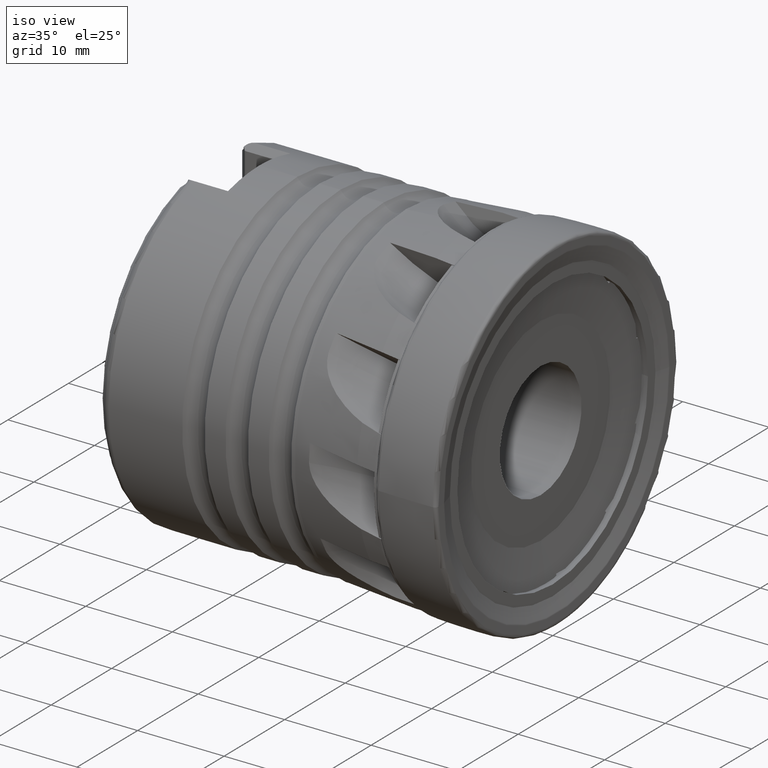
[diagram: clean part render]
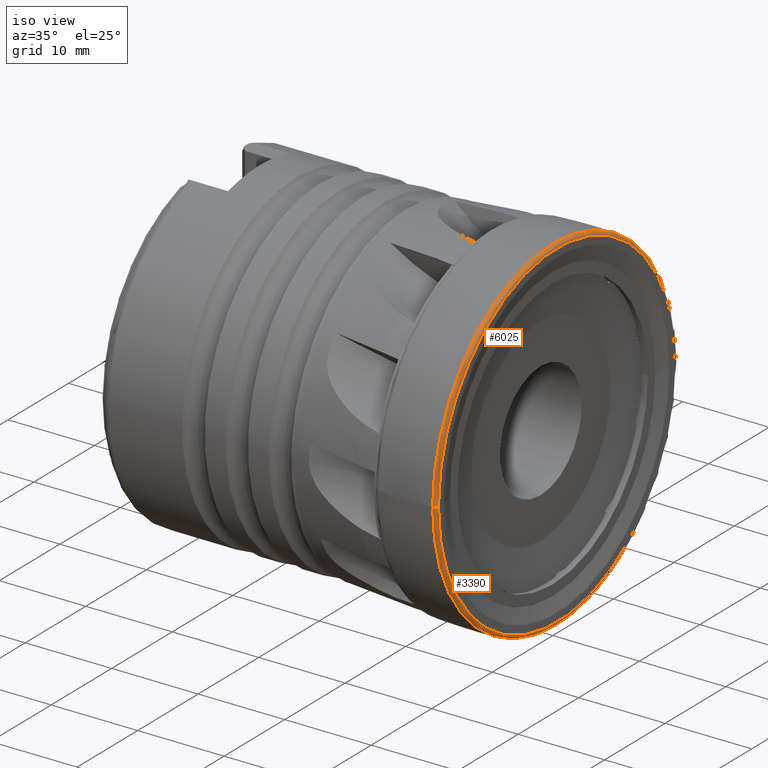
[diagram: same view with one multi-face feature highlighted, each face labeled with its STEP entity id]
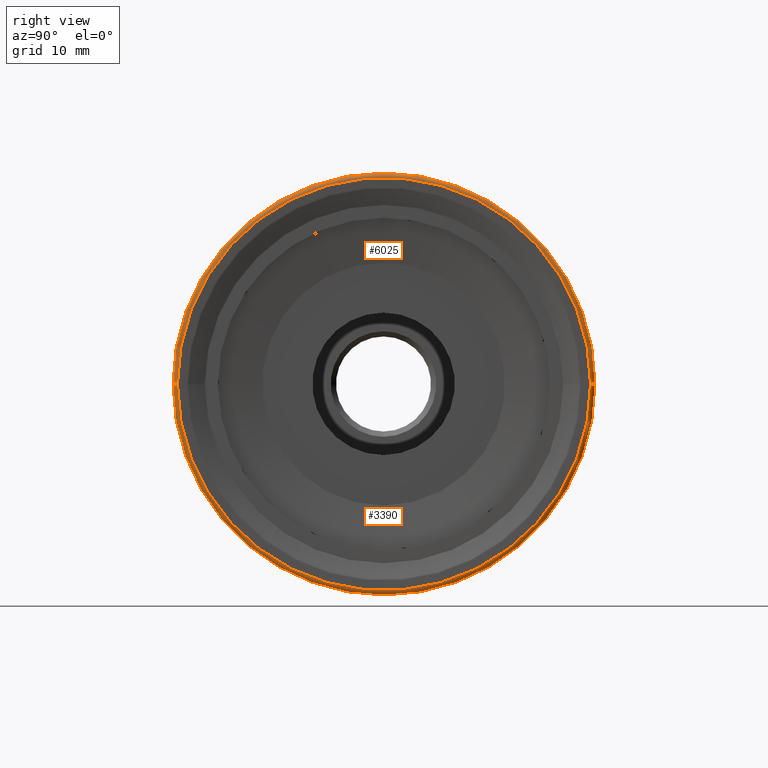
[diagram: same view with one multi-face feature highlighted, each face labeled with its STEP entity id]
A machine part, iso view. The highlighted faces form ONE feature: a constant-radius fillet chain: 2 tangent blend faces with common blend radius 0.3973 mm. The faces share edges in the B-rep.
A second angle (right view) of the same feature is appended — it is thin or edge-on in the first view.
Their STEP definitions:
[1] entity #6025 (Torus):
#91 = CARTESIAN_POINT ( 'NONE',  ( 0.06184514802468052400, 20.02561404155564500, 0.0000000000000000000 ) ) ;
#100 = CARTESIAN_POINT ( 'NONE',  ( 0.4498094004054028500, -19.51942813533848300, 2.421435466204023600E-015 ) ) ;
#645 = VERTEX_POINT ( 'NONE', #91 ) ;
#677 = VERTEX_POINT ( 'NONE', #100 ) ;
#1437 = ORIENTED_EDGE ( 'NONE', *, *, #6211, .F. ) ;
#1597 = DIRECTION ( 'NONE',  ( 1.000000000000000000, 1.224527162102617500E-016, -0.0000000000000000000 ) ) ;
#1608 = FACE_OUTER_BOUND ( 'NONE', #5571, .T. ) ;
#1609 = CARTESIAN_POINT ( 'NONE',  ( 0.05271361019861038600, 0.04834982009453009400, 0.0000000000000000000 ) ) ;
#1611 = DIRECTION ( 'NONE',  ( -1.224527162102617500E-016, 1.000000000000000000, 0.0000000000000000000 ) ) ;
#3816 = ORIENTED_EDGE ( 'NONE', *, *, #6215, .T. ) ;
#3827 = ORIENTED_EDGE ( 'NONE', *, *, #6216, .T. ) ;
#3886 = ORIENTED_EDGE ( 'NONE', *, *, #6209, .F. ) ;
#4906 = CARTESIAN_POINT ( 'NONE',  ( 0.06184514802468556900, -19.92891440136657600, 2.446509268453329800E-015 ) ) ;
#4968 = TOROIDAL_SURFACE ( 'NONE', #4970, 19.58008278868970100, 0.3972863898013892500 ) ;
#4970 = AXIS2_PLACEMENT_3D ( 'NONE', #1609, #1597, #1611 ) ;
#5166 = CIRCLE ( 'NONE', #5168, 19.56777795543301200 ) ;
#5167 = CIRCLE ( 'NONE', #5172, 0.3972863898013892500 ) ;
#5168 = AXIS2_PLACEMENT_3D ( 'NONE', #10123, #10124, #10125 ) ;
#5169 = CIRCLE ( 'NONE', #5180, 19.97726422146111600 ) ;
#5172 = AXIS2_PLACEMENT_3D ( 'NONE', #10132, #10133, #10134 ) ;
#5176 = CIRCLE ( 'NONE', #5178, 0.3972863898013892500 ) ;
#5178 = AXIS2_PLACEMENT_3D ( 'NONE', #10140, #10141, #10142 ) ;
#5180 = AXIS2_PLACEMENT_3D ( 'NONE', #10144, #10145, #10146 ) ;
#5293 = VERTEX_POINT ( 'NONE', #8301 ) ;
#5325 = VERTEX_POINT ( 'NONE', #4906 ) ;
#5571 = EDGE_LOOP ( 'NONE', ( #3827, #3816, #3886, #1437 ) ) ;
#6025 = ADVANCED_FACE ( 'NONE', ( #1608 ), #4968, .T. ) ;
#6209 = EDGE_CURVE ( 'NONE', #5293, #677, #5166, .T. ) ;
#6211 = EDGE_CURVE ( 'NONE', #645, #5293, #5167, .T. ) ;
#6215 = EDGE_CURVE ( 'NONE', #5325, #677, #5176, .T. ) ;
#6216 = EDGE_CURVE ( 'NONE', #645, #5325, #5169, .T. ) ;
#8301 = CARTESIAN_POINT ( 'NONE',  ( 0.4498094004053980700, 19.61612777552754100, 0.0000000000000000000 ) ) ;
#10123 = CARTESIAN_POINT ( 'NONE',  ( 0.4498094004054004600, 0.04834982009453017700, 0.0000000000000000000 ) ) ;
#10124 = DIRECTION ( 'NONE',  ( 1.000000000000000000, 1.224527162102617500E-016, -0.0000000000000000000 ) ) ;
#10125 = DIRECTION ( 'NONE',  ( -1.218965579485147500E-016, 1.000000000000000000, 0.0000000000000000000 ) ) ;
#10132 = CARTESIAN_POINT ( 'NONE',  ( 0.05271361019860798500, 19.62843260878423400, 0.0000000000000000000 ) ) ;
#10133 = DIRECTION ( 'NONE',  ( -0.0000000000000000000, 0.0000000000000000000, -1.000000000000000000 ) ) ;
#10134 = DIRECTION ( 'NONE',  ( -1.000000000000000000, 0.0000000000000000000, 0.0000000000000000000 ) ) ;
#10140 = CARTESIAN_POINT ( 'NONE',  ( 0.05271361019861278700, -19.53173296859517200, 2.397868571420902900E-015 ) ) ;
#10141 = DIRECTION ( 'NONE',  ( -1.499613269537962800E-032, 1.224646799147353200E-016, 1.000000000000000000 ) ) ;
#10142 = DIRECTION ( 'NONE',  ( 0.0000000000000000000, -1.000000000000000000, 1.224646799147348800E-016 ) ) ;
#10144 = CARTESIAN_POINT ( 'NONE',  ( 0.06184514802468326500, 0.04834982009453012800, 0.0000000000000000000 ) ) ;
#10145 = DIRECTION ( 'NONE',  ( 1.000000000000000000, 1.224527162102617500E-016, -0.0000000000000000000 ) ) ;
#10146 = DIRECTION ( 'NONE',  ( -1.227899570259096900E-016, 1.000000000000000000, 0.0000000000000000000 ) ) ;
[2] entity #3390 (Torus):
#91 = CARTESIAN_POINT ( 'NONE',  ( 0.06184514802468052400, 20.02561404155564500, 0.0000000000000000000 ) ) ;
#100 = CARTESIAN_POINT ( 'NONE',  ( 0.4498094004054028500, -19.51942813533848300, 2.421435466204023600E-015 ) ) ;
#443 = EDGE_LOOP ( 'NONE', ( #3343, #3344, #3345, #3346 ) ) ;
#645 = VERTEX_POINT ( 'NONE', #91 ) ;
#677 = VERTEX_POINT ( 'NONE', #100 ) ;
#1460 = TOROIDAL_SURFACE ( 'NONE', #1516, 19.58008278868970100, 0.3972863898013892500 ) ;
#1516 = AXIS2_PLACEMENT_3D ( 'NONE', #5717, #5714, #5719 ) ;
#3343 = ORIENTED_EDGE ( 'NONE', *, *, #6215, .F. ) ;
#3344 = ORIENTED_EDGE ( 'NONE', *, *, #6181, .T. ) ;
#3345 = ORIENTED_EDGE ( 'NONE', *, *, #6211, .T. ) ;
#3346 = ORIENTED_EDGE ( 'NONE', *, *, #6187, .F. ) ;
#3390 = ADVANCED_FACE ( 'NONE', ( #5712 ), #1460, .T. ) ;
#4906 = CARTESIAN_POINT ( 'NONE',  ( 0.06184514802468556900, -19.92891440136657600, 2.446509268453329800E-015 ) ) ;
#5095 = CIRCLE ( 'NONE', #5138, 19.97726422146111600 ) ;
#5138 = AXIS2_PLACEMENT_3D ( 'NONE', #10016, #10017, #10018 ) ;
#5141 = CIRCLE ( 'NONE', #5145, 19.56777795543301200 ) ;
#5145 = AXIS2_PLACEMENT_3D ( 'NONE', #10047, #10048, #10049 ) ;
#5167 = CIRCLE ( 'NONE', #5172, 0.3972863898013892500 ) ;
#5172 = AXIS2_PLACEMENT_3D ( 'NONE', #10132, #10133, #10134 ) ;
#5176 = CIRCLE ( 'NONE', #5178, 0.3972863898013892500 ) ;
#5178 = AXIS2_PLACEMENT_3D ( 'NONE', #10140, #10141, #10142 ) ;
#5293 = VERTEX_POINT ( 'NONE', #8301 ) ;
#5325 = VERTEX_POINT ( 'NONE', #4906 ) ;
#5712 = FACE_OUTER_BOUND ( 'NONE', #443, .T. ) ;
#5714 = DIRECTION ( 'NONE',  ( 1.000000000000000000, 1.224527162102617500E-016, -0.0000000000000000000 ) ) ;
#5717 = CARTESIAN_POINT ( 'NONE',  ( 0.05271361019861038600, 0.04834982009453009400, 0.0000000000000000000 ) ) ;
#5719 = DIRECTION ( 'NONE',  ( -1.224527162102617500E-016, 1.000000000000000000, 0.0000000000000000000 ) ) ;
#6181 = EDGE_CURVE ( 'NONE', #5325, #645, #5095, .T. ) ;
#6187 = EDGE_CURVE ( 'NONE', #677, #5293, #5141, .T. ) ;
#6211 = EDGE_CURVE ( 'NONE', #645, #5293, #5167, .T. ) ;
#6215 = EDGE_CURVE ( 'NONE', #5325, #677, #5176, .T. ) ;
#8301 = CARTESIAN_POINT ( 'NONE',  ( 0.4498094004053980700, 19.61612777552754100, 0.0000000000000000000 ) ) ;
#10016 = CARTESIAN_POINT ( 'NONE',  ( 0.06184514802468326500, 0.04834982009453012800, 0.0000000000000000000 ) ) ;
#10017 = DIRECTION ( 'NONE',  ( 1.000000000000000000, 1.224527162102617500E-016, -0.0000000000000000000 ) ) ;
#10018 = DIRECTION ( 'NONE',  ( -1.227899570259096900E-016, 1.000000000000000000, 0.0000000000000000000 ) ) ;
#10047 = CARTESIAN_POINT ( 'NONE',  ( 0.4498094004054004600, 0.04834982009453017700, 0.0000000000000000000 ) ) ;
#10048 = DIRECTION ( 'NONE',  ( 1.000000000000000000, 1.224527162102617500E-016, -0.0000000000000000000 ) ) ;
#10049 = DIRECTION ( 'NONE',  ( -1.218965579485147500E-016, 1.000000000000000000, 0.0000000000000000000 ) ) ;
#10132 = CARTESIAN_POINT ( 'NONE',  ( 0.05271361019860798500, 19.62843260878423400, 0.0000000000000000000 ) ) ;
#10133 = DIRECTION ( 'NONE',  ( -0.0000000000000000000, 0.0000000000000000000, -1.000000000000000000 ) ) ;
#10134 = DIRECTION ( 'NONE',  ( -1.000000000000000000, 0.0000000000000000000, 0.0000000000000000000 ) ) ;
#10140 = CARTESIAN_POINT ( 'NONE',  ( 0.05271361019861278700, -19.53173296859517200, 2.397868571420902900E-015 ) ) ;
#10141 = DIRECTION ( 'NONE',  ( -1.499613269537962800E-032, 1.224646799147353200E-016, 1.000000000000000000 ) ) ;
#10142 = DIRECTION ( 'NONE',  ( 0.0000000000000000000, -1.000000000000000000, 1.224646799147348800E-016 ) ) ;